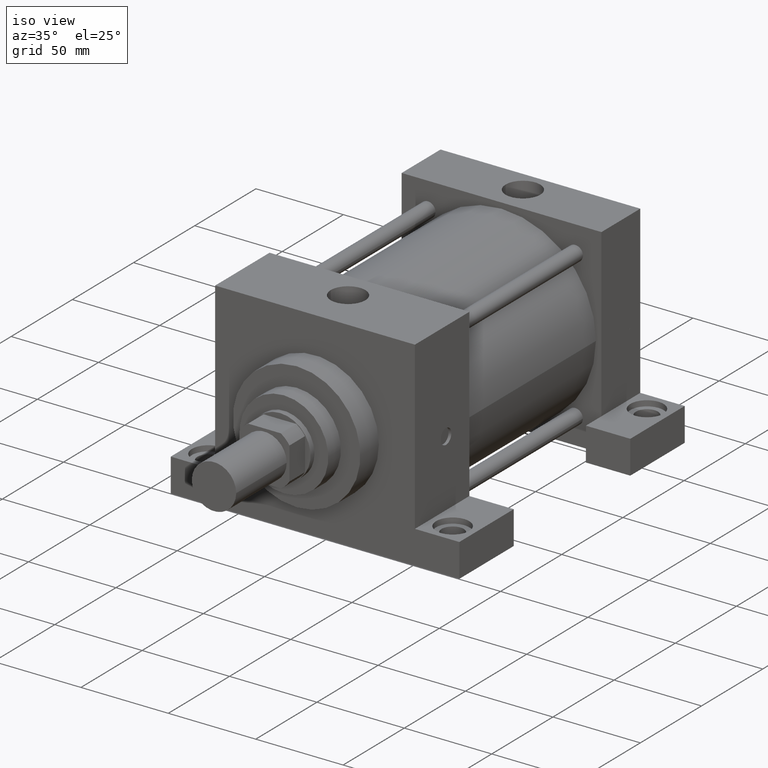
[diagram: clean part render]
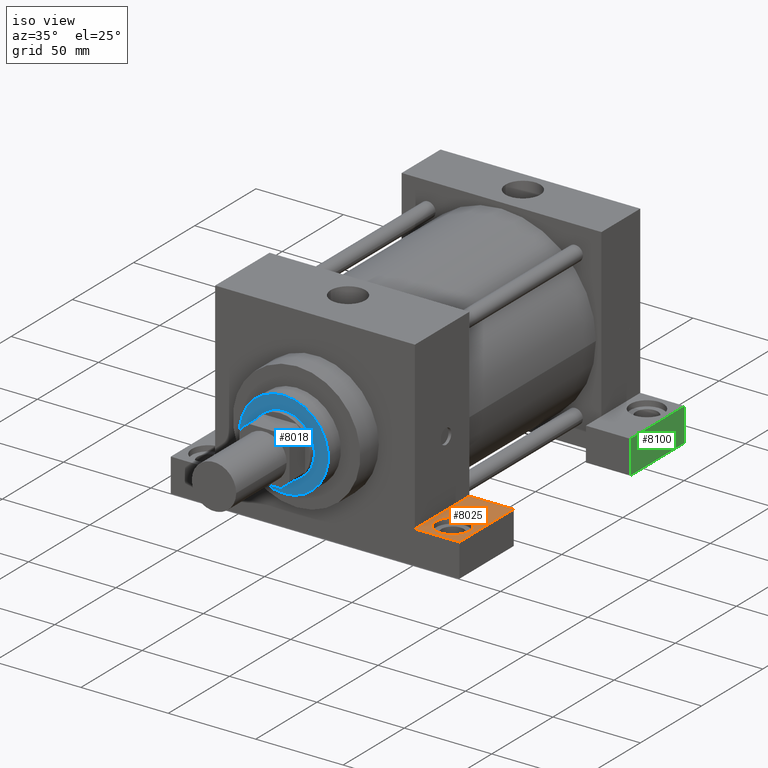
[diagram: same view with three faces highlighted in distinct colors, each labeled with its STEP entity id]
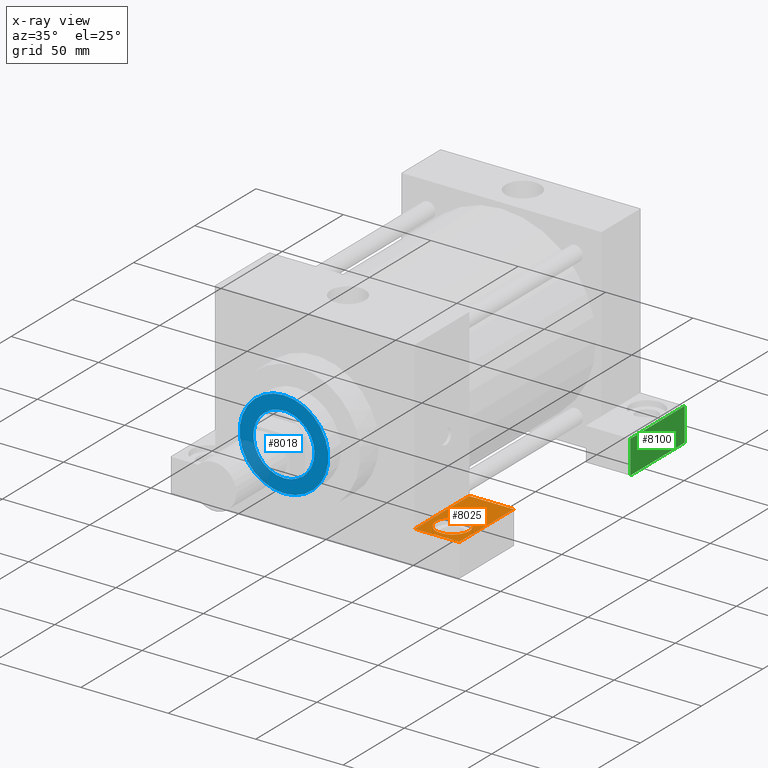
[diagram: x-ray of the same camera — body ghosted, the three highlighted faces saturated]
A machine part, iso view with three faces highlighted in distinct colors.
The next image is the same camera in x-ray (body ghosted, the three faces saturated) — at least one of them is partly hidden behind the body in this view.
Their STEP definitions:

[orange] entity #8025 — the highlighted planar face has unit normal (0, 0, 1).
#533=VERTEX_POINT('',#535);
#535=CARTESIAN_POINT('',(8.255000000E+001,8.572500000E+001,-3.810000000E+001));
#577=VERTEX_POINT('',#578);
#578=CARTESIAN_POINT('',(5.715000000E+001,8.572500000E+001,-3.810000000E+001));
#579=EDGE_CURVE('',#533,#577,#580,.T.);
#580=LINE('',#581,#582);
#581=CARTESIAN_POINT('',(8.255000000E+001,8.572500000E+001,-3.810000000E+001));
#582=VECTOR('',#583,1.0E+000);
#583=DIRECTION('',(-1.0E+000,0.0E+000,0.0E+000));
#642=VERTEX_POINT('',#643);
#643=CARTESIAN_POINT('',(8.255000000E+001,4.127500000E+001,-3.810000000E+001));
#644=EDGE_CURVE('',#649,#642,#645,.T.);
#645=LINE('',#646,#647);
#646=CARTESIAN_POINT('',(5.715000000E+001,4.127500000E+001,-3.810000000E+001));
#647=VECTOR('',#648,1.0E+000);
#648=DIRECTION('',(1.0E+000,0.0E+000,0.0E+000));
#649=VERTEX_POINT('',#650);
#650=CARTESIAN_POINT('',(5.715000000E+001,4.127500000E+001,-3.810000000E+001));
#747=EDGE_CURVE('',#577,#649,#748,.T.);
#748=LINE('',#749,#750);
#749=CARTESIAN_POINT('',(5.715000000E+001,8.572500000E+001,-3.810000000E+001));
#750=VECTOR('',#751,1.0E+000);
#751=DIRECTION('',(0.0E+000,-1.0E+000,0.0E+000));
#795=EDGE_CURVE('',#642,#533,#796,.T.);
#796=LINE('',#797,#798);
#797=CARTESIAN_POINT('',(8.255000000E+001,4.127500000E+001,-3.810000000E+001));
#798=VECTOR('',#799,1.0E+000);
#799=DIRECTION('',(0.0E+000,1.0E+000,0.0E+000));
#805=FACE_OUTER_BOUND('',#807,.T.);
#806=FACE_BOUND('',#808,.T.);
#807=EDGE_LOOP('',(#809));
#808=EDGE_LOOP('',(#818,#819,#820,#821));
#809=ORIENTED_EDGE('',*,*,#810,.T.);
#810=EDGE_CURVE('',#816,#816,#811,.T.);
#811=CIRCLE('',#812,9.525000000E+000);
#812=AXIS2_PLACEMENT_3D('',#813,#814,#815);
#813=CARTESIAN_POINT('',(6.985000000E+001,5.397500000E+001,-3.810000000E+001));
#814=DIRECTION('',(0.0E+000,0.0E+000,-1.0E+000));
#815=DIRECTION('',(0.0E+000,-1.0E+000,0.0E+000));
#816=VERTEX_POINT('',#817);
#817=CARTESIAN_POINT('',(6.985000000E+001,4.445000000E+001,-3.810000000E+001));
#818=ORIENTED_EDGE('',*,*,#579,.T.);
#819=ORIENTED_EDGE('',*,*,#747,.T.);
#820=ORIENTED_EDGE('',*,*,#644,.T.);
#821=ORIENTED_EDGE('',*,*,#795,.T.);
#822=PLANE('',#823);
#823=AXIS2_PLACEMENT_3D('',#824,#825,#826);
#824=CARTESIAN_POINT('',(5.715000000E+001,8.572500000E+001,-3.810000000E+001));
#825=DIRECTION('',(0.0E+000,0.0E+000,1.0E+000));
#826=DIRECTION('',(1.0E+000,0.0E+000,0.0E+000));
#8025=ADVANCED_FACE('',(#805,#806),#822,.T.);

[blue] entity #8018 — the highlighted planar face has unit normal (0, 1, 0).
#131=EDGE_CURVE('',#137,#137,#132,.T.);
#132=CIRCLE('',#133,1.746250000E+001);
#133=AXIS2_PLACEMENT_3D('',#134,#135,#136);
#134=CARTESIAN_POINT('',(0.000000000E+000,1.587500000E+001,0.000000000E+000));
#135=DIRECTION('',(0.0E+000,1.0E+000,0.0E+000));
#136=DIRECTION('',(1.0E+000,0.0E+000,0.0E+000));
#137=VERTEX_POINT('',#138);
#138=CARTESIAN_POINT('',(1.746250000E+001,1.587500000E+001,0.000000000E+000));
#433=EDGE_CURVE('',#439,#439,#434,.T.);
#434=CIRCLE('',#435,2.540000000E+001);
#435=AXIS2_PLACEMENT_3D('',#436,#437,#438);
#436=CARTESIAN_POINT('',(0.000000000E+000,1.587500000E+001,0.000000000E+000));
#437=DIRECTION('',(0.0E+000,-1.0E+000,0.0E+000));
#438=DIRECTION('',(0.0E+000,0.0E+000,-1.0E+000));
#439=VERTEX_POINT('',#440);
#440=CARTESIAN_POINT('',(0.000000000E+000,1.587500000E+001,-2.540000000E+001));
#465=FACE_OUTER_BOUND('',#467,.T.);
#466=FACE_BOUND('',#468,.T.);
#467=EDGE_LOOP('',(#469));
#468=EDGE_LOOP('',(#470));
#469=ORIENTED_EDGE('',*,*,#433,.T.);
#470=ORIENTED_EDGE('',*,*,#131,.T.);
#471=PLANE('',#472);
#472=AXIS2_PLACEMENT_3D('',#473,#474,#475);
#473=CARTESIAN_POINT('',(0.000000000E+000,1.587500000E+001,0.000000000E+000));
#474=DIRECTION('',(0.0E+000,1.0E+000,0.0E+000));
#475=DIRECTION('',(0.0E+000,0.0E+000,1.0E+000));
#8018=ADVANCED_FACE('',(#465,#466),#471,.F.);

[green] entity #8100 — the highlighted planar face has unit normal (-1, 0, 0).
#3481=VERTEX_POINT('',#3482);
#3482=CARTESIAN_POINT('',(8.255000000E+001,2.254250000E+002,-5.715000000E+001));
#3483=EDGE_CURVE('',#3488,#3481,#3484,.T.);
#3484=LINE('',#3485,#3486);
#3485=CARTESIAN_POINT('',(8.255000000E+001,1.809750000E+002,-5.715000000E+001));
#3486=VECTOR('',#3487,1.0E+000);
#3487=DIRECTION('',(0.0E+000,1.0E+000,0.0E+000));
#3488=VERTEX_POINT('',#3489);
#3489=CARTESIAN_POINT('',(8.255000000E+001,1.809750000E+002,-5.715000000E+001));
#3537=VERTEX_POINT('',#3538);
#3538=CARTESIAN_POINT('',(8.255000000E+001,1.809750000E+002,-3.810000000E+001));
#3539=EDGE_CURVE('',#3537,#3544,#3540,.T.);
#3540=LINE('',#3541,#3542);
#3541=CARTESIAN_POINT('',(8.255000000E+001,1.809750000E+002,-3.810000000E+001));
#3542=VECTOR('',#3543,1.0E+000);
#3543=DIRECTION('',(0.0E+000,1.0E+000,0.0E+000));
#3544=VERTEX_POINT('',#3545);
#3545=CARTESIAN_POINT('',(8.255000000E+001,2.254250000E+002,-3.810000000E+001));
#3556=FACE_OUTER_BOUND('',#3557,.T.);
#3557=EDGE_LOOP('',(#3558,#3559,#3560,#3561));
#3558=ORIENTED_EDGE('',*,*,#3562,.T.);
#3559=ORIENTED_EDGE('',*,*,#3483,.T.);
#3560=ORIENTED_EDGE('',*,*,#3567,.F.);
#3561=ORIENTED_EDGE('',*,*,#3539,.F.);
#3562=EDGE_CURVE('',#3537,#3488,#3563,.T.);
#3563=LINE('',#3564,#3565);
#3564=CARTESIAN_POINT('',(8.255000000E+001,1.809750000E+002,-3.810000000E+001));
#3565=VECTOR('',#3566,1.0E+000);
#3566=DIRECTION('',(0.0E+000,0.0E+000,-1.0E+000));
#3567=EDGE_CURVE('',#3544,#3481,#3568,.T.);
#3568=LINE('',#3569,#3570);
#3569=CARTESIAN_POINT('',(8.255000000E+001,2.254250000E+002,-3.810000000E+001));
#3570=VECTOR('',#3571,1.0E+000);
#3571=DIRECTION('',(0.0E+000,0.0E+000,-1.0E+000));
#3572=PLANE('',#3573);
#3573=AXIS2_PLACEMENT_3D('',#3574,#3575,#3576);
#3574=CARTESIAN_POINT('',(8.255000000E+001,1.809750000E+002,-3.810000000E+001));
#3575=DIRECTION('',(-1.0E+000,0.0E+000,0.0E+000));
#3576=DIRECTION('',(0.0E+000,0.0E+000,1.0E+000));
#8100=ADVANCED_FACE('',(#3556),#3572,.F.);